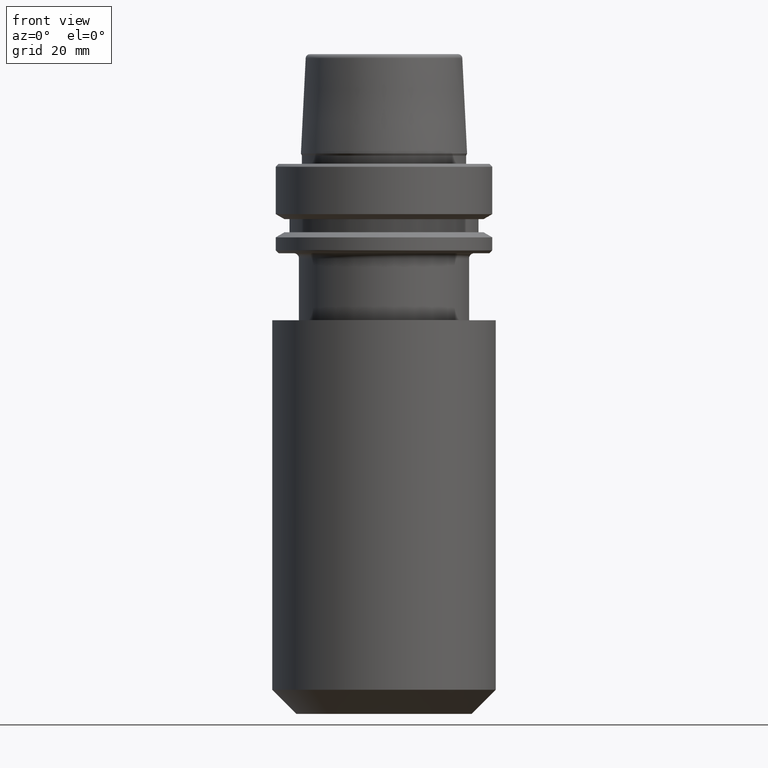
[diagram: clean part render]
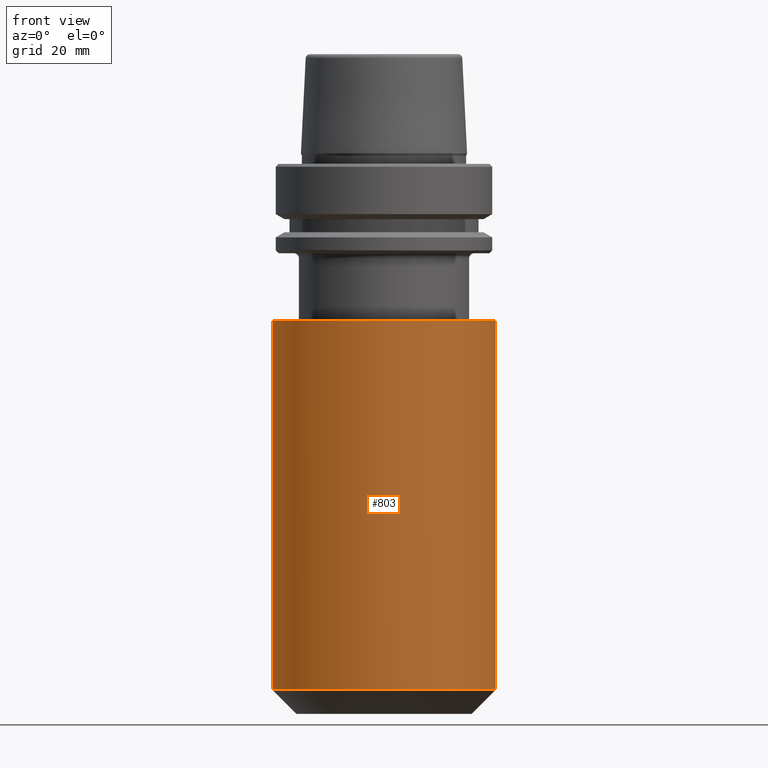
[diagram: same view with one face highlighted and labeled with its STEP entity id]
A machine part, front view. The second image highlights one B-rep face of the part: STEP entity #803.
In plain terms, the highlighted cylindrical surface (partial cylindrical patch) has radius 32.5 mm, axis along (-0, -0, 1).
Its self-contained STEP definition (entity closure, byte-faithful):
#2 = CARTESIAN_POINT ( 'NONE',  ( 0.0000000000000000000, 0.0000000000000000000, 31.31059451800105700 ) ) ;
#11 = CARTESIAN_POINT ( 'NONE',  ( 32.50000000000000000, 0.0000000000000000000, 31.31059451800105700 ) ) ;
#23 = DIRECTION ( 'NONE',  ( -0.0000000000000000000, -0.0000000000000000000, 1.000000000000000000 ) ) ;
#40 = DIRECTION ( 'NONE',  ( -0.0000000000000000000, -0.0000000000000000000, 1.000000000000000000 ) ) ;
#64 = CARTESIAN_POINT ( 'NONE',  ( 32.50000000000000000, 0.0000000000000000000, -153.0000000000000000 ) ) ;
#134 = ORIENTED_EDGE ( 'NONE', *, *, #630, .T. ) ;
#154 = LINE ( 'NONE', #1074, #1217 ) ;
#204 = DIRECTION ( 'NONE',  ( -0.0000000000000000000, -0.0000000000000000000, 1.000000000000000000 ) ) ;
#216 = ORIENTED_EDGE ( 'NONE', *, *, #225, .F. ) ;
#225 = EDGE_CURVE ( 'NONE', #324, #584, #1019, .T. ) ;
#296 = ORIENTED_EDGE ( 'NONE', *, *, #620, .T. ) ;
#324 = VERTEX_POINT ( 'NONE', #1046 ) ;
#332 = DIRECTION ( 'NONE',  ( 1.000000000000000000, 0.0000000000000000000, 0.0000000000000000000 ) ) ;
#347 = AXIS2_PLACEMENT_3D ( 'NONE', #2, #204, #926 ) ;
#357 = DIRECTION ( 'NONE',  ( 1.000000000000000000, 0.0000000000000000000, 0.0000000000000000000 ) ) ;
#412 = ORIENTED_EDGE ( 'NONE', *, *, #994, .F. ) ;
#449 = AXIS2_PLACEMENT_3D ( 'NONE', #1152, #616, #357 ) ;
#565 = CARTESIAN_POINT ( 'NONE',  ( 0.0000000000000000000, 0.0000000000000000000, -45.50000000000001400 ) ) ;
#584 = VERTEX_POINT ( 'NONE', #954 ) ;
#585 = CARTESIAN_POINT ( 'NONE',  ( -32.50000000000000000, 3.980102097228898600E-015, -153.0000000000000000 ) ) ;
#616 = DIRECTION ( 'NONE',  ( -0.0000000000000000000, -0.0000000000000000000, 1.000000000000000000 ) ) ;
#620 = EDGE_CURVE ( 'NONE', #1129, #584, #1271, .T. ) ;
#630 = EDGE_CURVE ( 'NONE', #1213, #1129, #1023, .T. ) ;
#699 = AXIS2_PLACEMENT_3D ( 'NONE', #565, #853, #332 ) ;
#716 = VECTOR ( 'NONE', #23, 1000.000000000000000 ) ;
#803 = ADVANCED_FACE ( 'NONE', ( #891 ), #862, .T. ) ;
#853 = DIRECTION ( 'NONE',  ( -0.0000000000000000000, -0.0000000000000000000, 1.000000000000000000 ) ) ;
#862 = CYLINDRICAL_SURFACE ( 'NONE', #347, 32.50000000000000000 ) ;
#891 = FACE_OUTER_BOUND ( 'NONE', #950, .T. ) ;
#926 = DIRECTION ( 'NONE',  ( 1.000000000000000000, 0.0000000000000000000, 0.0000000000000000000 ) ) ;
#950 = EDGE_LOOP ( 'NONE', ( #412, #134, #296, #216 ) ) ;
#954 = CARTESIAN_POINT ( 'NONE',  ( 32.50000000000000000, 0.0000000000000000000, -45.50000000000001400 ) ) ;
#994 = EDGE_CURVE ( 'NONE', #1213, #324, #154, .T. ) ;
#1019 = CIRCLE ( 'NONE', #699, 32.50000000000000000 ) ;
#1023 = CIRCLE ( 'NONE', #449, 32.50000000000000000 ) ;
#1046 = CARTESIAN_POINT ( 'NONE',  ( -32.50000000000000000, 3.980102097228898600E-015, -45.50000000000001400 ) ) ;
#1074 = CARTESIAN_POINT ( 'NONE',  ( -32.50000000000000000, 3.980102097228898600E-015, 31.31059451800105700 ) ) ;
#1129 = VERTEX_POINT ( 'NONE', #64 ) ;
#1152 = CARTESIAN_POINT ( 'NONE',  ( 0.0000000000000000000, 0.0000000000000000000, -153.0000000000000000 ) ) ;
#1213 = VERTEX_POINT ( 'NONE', #585 ) ;
#1217 = VECTOR ( 'NONE', #40, 1000.000000000000000 ) ;
#1271 = LINE ( 'NONE', #11, #716 ) ;